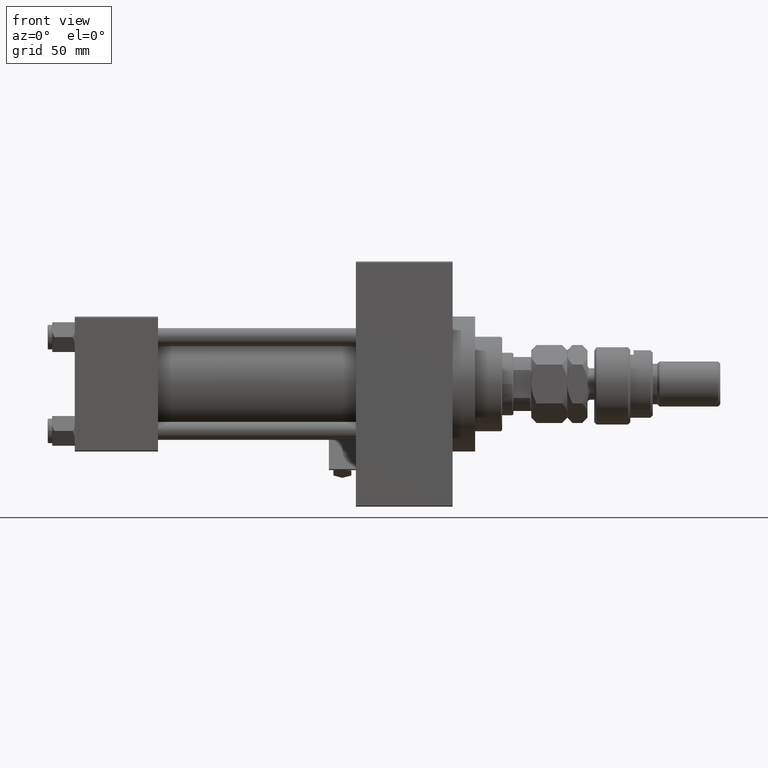
[diagram: clean part render]
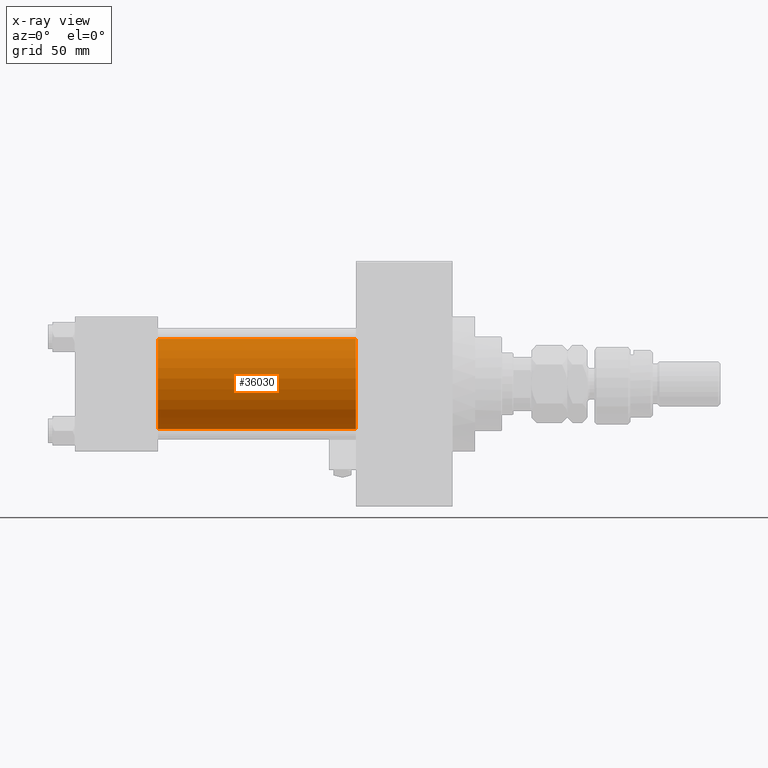
[diagram: x-ray — body ghosted, one internal face saturated and labeled with its STEP entity id]
A machine part, front view, then the same camera in x-ray: the body is ghosted and one INTERNAL B-rep face — a face not visible from any outside direction — is saturated and labeled: STEP entity #36030.
In plain terms, the highlighted cylindrical surface (partial cylindrical patch) has radius 20 mm, axis along (-1, -0, -0).
Its self-contained STEP definition (entity closure, byte-faithful):
#2755 = VERTEX_POINT ( 'NONE', #23127 ) ;
#2808 = ORIENTED_EDGE ( 'NONE', *, *, #3696, .T. ) ;
#3388 = CIRCLE ( 'NONE', #36223, 20.00000000000000000 ) ;
#3499 = VECTOR ( 'NONE', #41268, 1000.000000000000000 ) ;
#3696 = EDGE_CURVE ( 'NONE', #51342, #11674, #3712, .T. ) ;
#3712 = LINE ( 'NONE', #20215, #3499 ) ;
#3861 = DIRECTION ( 'NONE',  ( 0.000000000000000000, 0.000000000000000000, -1.000000000000000000 ) ) ;
#4717 = DIRECTION ( 'NONE',  ( -1.000000000000000000, -0.000000000000000000, -0.000000000000000000 ) ) ;
#5302 = AXIS2_PLACEMENT_3D ( 'NONE', #39091, #39627, #22596 ) ;
#10152 = FACE_OUTER_BOUND ( 'NONE', #36177, .T. ) ;
#11591 = ORIENTED_EDGE ( 'NONE', *, *, #22666, .F. ) ;
#11674 = VERTEX_POINT ( 'NONE', #24700 ) ;
#11694 = DIRECTION ( 'NONE',  ( 1.000000000000000000, 0.000000000000000000, 0.000000000000000000 ) ) ;
#13068 = ORIENTED_EDGE ( 'NONE', *, *, #28529, .T. ) ;
#17972 = CARTESIAN_POINT ( 'NONE',  ( 125.0000000000000000, -1.527916156705042519E-16, -20.00000000000000000 ) ) ;
#19885 = EDGE_CURVE ( 'NONE', #2755, #21469, #50131, .T. ) ;
#20215 = CARTESIAN_POINT ( 'NONE',  ( 125.0000000000000000, -1.527916156705042519E-16, -20.00000000000000000 ) ) ;
#21081 = ORIENTED_EDGE ( 'NONE', *, *, #19885, .F. ) ;
#21469 = VERTEX_POINT ( 'NONE', #27531 ) ;
#22596 = DIRECTION ( 'NONE',  ( 0.000000000000000000, 0.000000000000000000, 1.000000000000000000 ) ) ;
#22666 = EDGE_CURVE ( 'NONE', #21469, #11674, #46343, .T. ) ;
#22840 = DIRECTION ( 'NONE',  ( 0.000000000000000000, 0.000000000000000000, -1.000000000000000000 ) ) ;
#23127 = CARTESIAN_POINT ( 'NONE',  ( 125.0000000000000000, -2.602085213965210642E-15, 20.00000000000000000 ) ) ;
#23883 = CARTESIAN_POINT ( 'NONE',  ( 125.0000000000000000, -2.602085213965210642E-15, 0.000000000000000000 ) ) ;
#24700 = CARTESIAN_POINT ( 'NONE',  ( 37.00000000000000000, -1.527916156705042519E-16, -20.00000000000000000 ) ) ;
#27531 = CARTESIAN_POINT ( 'NONE',  ( 37.00000000000000000, -2.602085213965210642E-15, 20.00000000000000000 ) ) ;
#28529 = EDGE_CURVE ( 'NONE', #2755, #51342, #3388, .T. ) ;
#29301 = CARTESIAN_POINT ( 'NONE',  ( 125.0000000000000000, -2.602085213965210642E-15, 20.00000000000000000 ) ) ;
#34235 = AXIS2_PLACEMENT_3D ( 'NONE', #39861, #39601, #22840 ) ;
#36030 = ADVANCED_FACE ( 'NONE', ( #10152 ), #48288, .F. ) ;
#36177 = EDGE_LOOP ( 'NONE', ( #13068, #2808, #11591, #21081 ) ) ;
#36223 = AXIS2_PLACEMENT_3D ( 'NONE', #23883, #11694, #3861 ) ;
#39091 = CARTESIAN_POINT ( 'NONE',  ( 125.0000000000000000, -2.602085213965210642E-15, 0.000000000000000000 ) ) ;
#39601 = DIRECTION ( 'NONE',  ( 1.000000000000000000, 0.000000000000000000, 0.000000000000000000 ) ) ;
#39627 = DIRECTION ( 'NONE',  ( -1.000000000000000000, -0.000000000000000000, -0.000000000000000000 ) ) ;
#39861 = CARTESIAN_POINT ( 'NONE',  ( 37.00000000000000000, -2.602085213965210642E-15, 0.000000000000000000 ) ) ;
#41268 = DIRECTION ( 'NONE',  ( -1.000000000000000000, -0.000000000000000000, -0.000000000000000000 ) ) ;
#45345 = VECTOR ( 'NONE', #4717, 1000.000000000000000 ) ;
#46343 = CIRCLE ( 'NONE', #34235, 20.00000000000000000 ) ;
#48288 = CYLINDRICAL_SURFACE ( 'NONE', #5302, 20.00000000000000000 ) ;
#50131 = LINE ( 'NONE', #29301, #45345 ) ;
#51342 = VERTEX_POINT ( 'NONE', #17972 ) ;